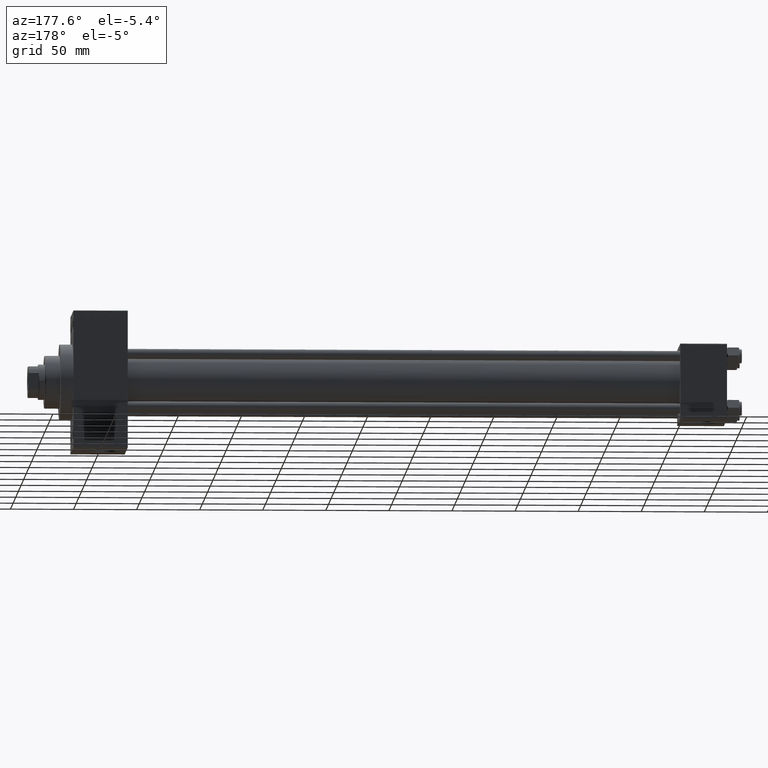
[diagram: clean part render]
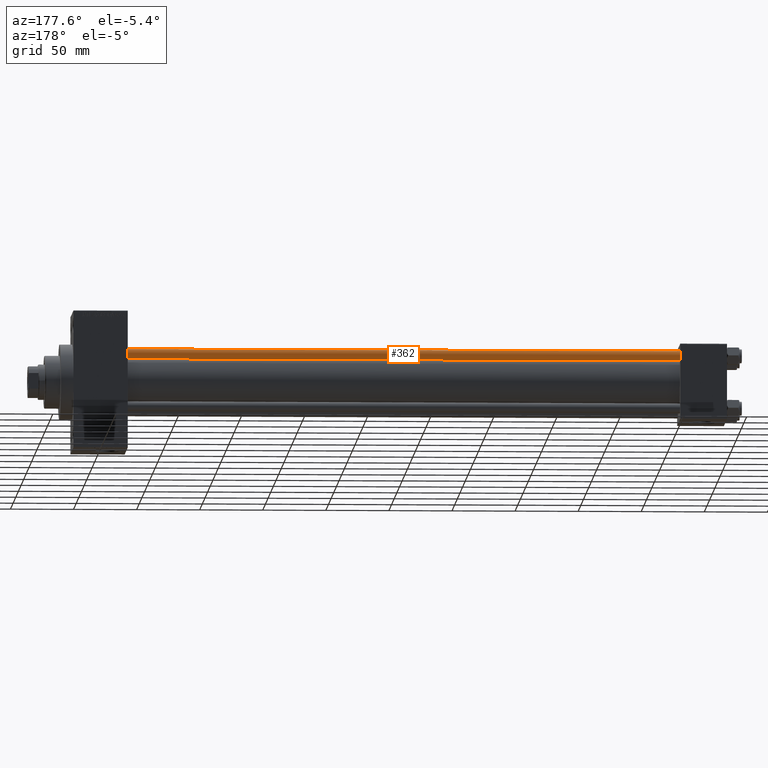
[diagram: same view with one face highlighted and labeled with its STEP entity id]
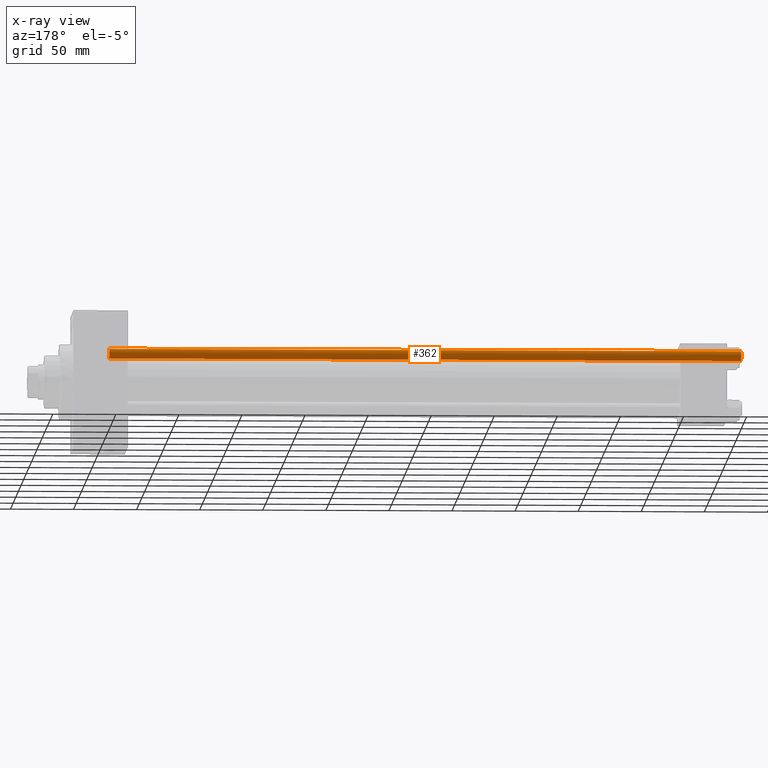
[diagram: x-ray of the same camera — body ghosted, the highlighted face saturated]
A machine part, auxiliary view. The second image highlights one B-rep face of the part: STEP entity #362.
The next image is the same camera in x-ray: the body ghosted, the highlighted face saturated — about 0% of this face is hidden behind the body in this view.
In plain terms, the highlighted cylindrical surface (edge-blend (fillet) strip) has radius 4 mm, axis along (-1, -0, 0).
Its self-contained STEP definition (entity closure, byte-faithful):
#362 = ADVANCED_FACE ( 'NONE', ( #28199 ), #16015, .T. ) ;
#2854 = AXIS2_PLACEMENT_3D ( 'NONE', #29893, #37606, #42083 ) ;
#10677 = VECTOR ( 'NONE', #45670, 1000.000000000000000 ) ;
#10902 = CIRCLE ( 'NONE', #47488, 4.000000000000000000 ) ;
#11094 = EDGE_CURVE ( 'NONE', #16995, #34132, #33963, .T. ) ;
#12263 = CARTESIAN_POINT ( 'NONE',  ( 0.000000000000000000, 0.000000000000000000, 502.0000000000000000 ) ) ;
#12801 = AXIS2_PLACEMENT_3D ( 'NONE', #12263, #35184, #43149 ) ;
#13698 = ORIENTED_EDGE ( 'NONE', *, *, #23417, .T. ) ;
#13772 = CARTESIAN_POINT ( 'NONE',  ( -4.000000000000000000, 0.000000000000000000, 501.4999999999999432 ) ) ;
#15959 = EDGE_LOOP ( 'NONE', ( #13698, #33310, #27165, #35672 ) ) ;
#16015 = CYLINDRICAL_SURFACE ( 'NONE', #12801, 4.000000000000000000 ) ;
#16995 = VERTEX_POINT ( 'NONE', #27229 ) ;
#17477 = CARTESIAN_POINT ( 'NONE',  ( 4.000000000000000000, 4.898587196589412829E-16, 0.4999999999999449329 ) ) ;
#18045 = VERTEX_POINT ( 'NONE', #13772 ) ;
#18372 = CARTESIAN_POINT ( 'NONE',  ( -4.000000000000000000, 0.000000000000000000, 0.4999999999999449329 ) ) ;
#22982 = CARTESIAN_POINT ( 'NONE',  ( -4.000000000000000000, 0.000000000000000000, 502.0000000000000000 ) ) ;
#23417 = EDGE_CURVE ( 'NONE', #18045, #16995, #28317, .T. ) ;
#24410 = DIRECTION ( 'NONE',  ( -0.000000000000000000, -0.000000000000000000, 1.000000000000000000 ) ) ;
#25994 = LINE ( 'NONE', #22982, #31354 ) ;
#26974 = CARTESIAN_POINT ( 'NONE',  ( 4.000000000000000000, 4.898587196589412829E-16, 502.0000000000000000 ) ) ;
#27165 = ORIENTED_EDGE ( 'NONE', *, *, #30166, .T. ) ;
#27229 = CARTESIAN_POINT ( 'NONE',  ( 4.000000000000000000, 4.898587196589412829E-16, 501.4999999999999432 ) ) ;
#28199 = FACE_OUTER_BOUND ( 'NONE', #15959, .T. ) ;
#28317 = CIRCLE ( 'NONE', #2854, 4.000000000000000000 ) ;
#28389 = DIRECTION ( 'NONE',  ( 1.000000000000000000, 0.000000000000000000, 0.000000000000000000 ) ) ;
#29893 = CARTESIAN_POINT ( 'NONE',  ( 0.000000000000000000, 0.000000000000000000, 501.4999999999999432 ) ) ;
#30166 = EDGE_CURVE ( 'NONE', #34132, #39154, #10902, .T. ) ;
#31354 = VECTOR ( 'NONE', #38177, 1000.000000000000000 ) ;
#33310 = ORIENTED_EDGE ( 'NONE', *, *, #11094, .T. ) ;
#33963 = LINE ( 'NONE', #26974, #10677 ) ;
#34132 = VERTEX_POINT ( 'NONE', #17477 ) ;
#35184 = DIRECTION ( 'NONE',  ( -0.000000000000000000, -0.000000000000000000, -1.000000000000000000 ) ) ;
#35672 = ORIENTED_EDGE ( 'NONE', *, *, #46112, .F. ) ;
#37606 = DIRECTION ( 'NONE',  ( 0.000000000000000000, 0.000000000000000000, -1.000000000000000000 ) ) ;
#38177 = DIRECTION ( 'NONE',  ( -0.000000000000000000, -0.000000000000000000, -1.000000000000000000 ) ) ;
#39154 = VERTEX_POINT ( 'NONE', #18372 ) ;
#42083 = DIRECTION ( 'NONE',  ( 1.000000000000000000, 0.000000000000000000, 0.000000000000000000 ) ) ;
#43149 = DIRECTION ( 'NONE',  ( -1.000000000000000000, 0.000000000000000000, 0.000000000000000000 ) ) ;
#45670 = DIRECTION ( 'NONE',  ( -0.000000000000000000, -0.000000000000000000, -1.000000000000000000 ) ) ;
#46112 = EDGE_CURVE ( 'NONE', #18045, #39154, #25994, .T. ) ;
#47488 = AXIS2_PLACEMENT_3D ( 'NONE', #48063, #24410, #28389 ) ;
#48063 = CARTESIAN_POINT ( 'NONE',  ( 0.000000000000000000, 0.000000000000000000, 0.4999999999999449329 ) ) ;